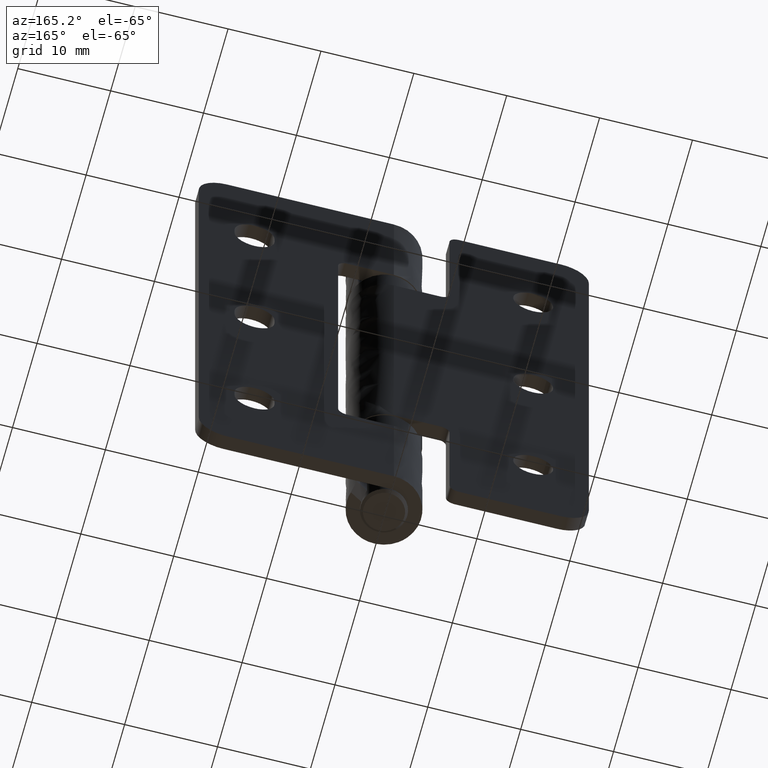
[diagram: clean part render]
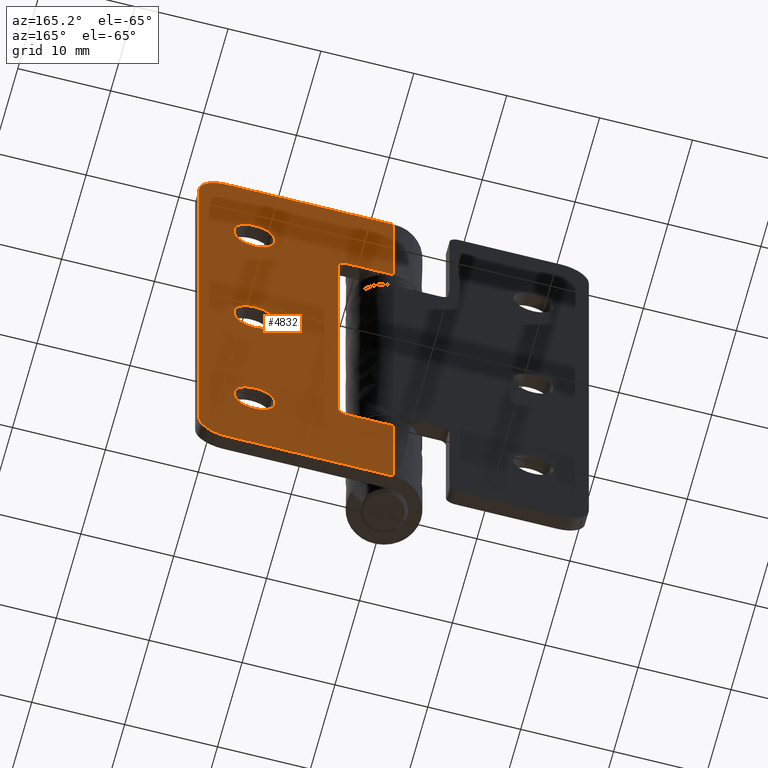
[diagram: same view with one face highlighted and labeled with its STEP entity id]
A machine part, auxiliary view. The second image highlights one B-rep face of the part: STEP entity #4832.
In plain terms, the highlighted face is a freeform B-spline surface patch.
Its self-contained STEP definition (entity closure, byte-faithful):
#3133=CARTESIAN_POINT('',(21.000000000000249,4.000000000000740,59.0));
#3134=VERTEX_POINT('',#3133);
#3135=CARTESIAN_POINT('',(21.000000000000249,4.000000000000740,3.0));
#3136=VERTEX_POINT('',#3135);
#3137=CARTESIAN_POINT('',(21.000000000000249,4.000000000000740,59.0));
#3138=CARTESIAN_POINT('',(21.000000000000249,4.000000000000740,3.0));
#3139=QUASI_UNIFORM_CURVE('',1,(#3137,#3138),.UNSPECIFIED.,.F.,.U.);
#3140=EDGE_CURVE('',#3134,#3136,#3139,.T.);
#3354=CARTESIAN_POINT('',(18.0,4.000000000000686,0.0));
#3355=VERTEX_POINT('',#3354);
#3361=CARTESIAN_POINT('',(21.000000000000249,4.000000000000740,3.0));
#3362=CARTESIAN_POINT('',(21.000116061152159,4.000000000000738,2.717730356393004));
#3363=CARTESIAN_POINT('',(20.940653351402851,4.000000000000727,2.300563675957953));
#3364=CARTESIAN_POINT('',(20.721483636953732,4.000000000000727,1.699675428696381));
#3365=CARTESIAN_POINT('',(20.416888918016891,4.000000000000698,1.176954198255986));
#3366=CARTESIAN_POINT('',(19.922393542313220,4.000000000000709,0.657542941131816));
#3367=CARTESIAN_POINT('',(19.368725826044770,4.000000000000690,0.306999293732984));
#3368=CARTESIAN_POINT('',(18.723982889428299,4.000000000000680,0.062833961659762));
#3369=CARTESIAN_POINT('',(18.282266173914739,4.000000000000697,-0.000112324100340));
#3370=CARTESIAN_POINT('',(18.0,4.000000000000686,0.0));
#3371=B_SPLINE_CURVE_WITH_KNOTS('',3,(#3361,#3362,#3363,#3364,#3365,#3366,#3367,#3368,#3369,#3370),.UNSPECIFIED.,.F.,.U.,(4,1,1,1,1,1,1,4),(0.000000086809734,0.846761320223142,1.251737829936889,1.914438360017636,2.650731675564213,3.387049641574537,3.865658404753547,4.712418548631745),.UNSPECIFIED.);
#3372=EDGE_CURVE('',#3136,#3355,#3371,.T.);
#3409=CARTESIAN_POINT('',(18.0,4.000000000000686,62.0));
#3410=VERTEX_POINT('',#3409);
#3411=CARTESIAN_POINT('',(18.0,4.000000000000686,62.0));
#3412=CARTESIAN_POINT('',(18.220896377921839,4.000000000000692,62.000042843371297));
#3413=CARTESIAN_POINT('',(18.638121905092120,4.000000000000677,61.953702447714747));
#3414=CARTESIAN_POINT('',(19.188436681635441,4.000000000000656,61.771910636832317));
#3415=CARTESIAN_POINT('',(19.675413172743280,4.000000000000706,61.507755905452953));
#3416=CARTESIAN_POINT('',(20.060499517313058,4.000000000000680,61.199551426162209));
#3417=CARTESIAN_POINT('',(20.421472791001129,4.000000000000696,60.796329496329150));
#3418=CARTESIAN_POINT('',(20.696035150265271,4.000000000000701,60.356829837216203));
#3419=CARTESIAN_POINT('',(20.935411836811952,4.000000000000709,59.736251929527128));
#3420=CARTESIAN_POINT('',(21.000116234458940,4.000000000000744,59.282267560980813));
#3421=CARTESIAN_POINT('',(21.000000000000249,4.000000000000740,59.0));
#3422=B_SPLINE_CURVE_WITH_KNOTS('',3,(#3411,#3412,#3413,#3414,#3415,#3416,#3417,#3418,#3419,#3420,#3421),.UNSPECIFIED.,.F.,.U.,(4,1,1,1,1,1,1,1,4),(0.000000086808813,0.662682928036981,1.251737829935594,1.730355480710800,2.319419796702396,2.724354663876945,3.350230237434267,3.865658404753584,4.712418548631763),.UNSPECIFIED.);
#3423=EDGE_CURVE('',#3410,#3134,#3422,.T.);
#3462=CARTESIAN_POINT('',(5.000000000000230,4.0,49.600000000000001));
#3463=VERTEX_POINT('',#3462);
#3469=CARTESIAN_POINT('',(6.000000000000230,4.0,48.599999999999987));
#3470=VERTEX_POINT('',#3469);
#3471=CARTESIAN_POINT('',(6.000000000000230,4.0,48.599999999999987));
#3472=CARTESIAN_POINT('',(6.000036704404684,4.000000000000078,48.698174138628367));
#3473=CARTESIAN_POINT('',(5.969654519745923,4.000000000000200,48.902696791073993));
#3474=CARTESIAN_POINT('',(5.842489861447035,4.000000000000318,49.163312331117972));
#3475=CARTESIAN_POINT('',(5.654231170386340,4.000000000000331,49.370954208934741));
#3476=CARTESIAN_POINT('',(5.384351379205684,4.000000000000268,49.546595364634662));
#3477=CARTESIAN_POINT('',(5.147309356629225,4.000000000000108,49.600231823773491));
#3478=CARTESIAN_POINT('',(5.000000000000230,4.0,49.600000000000001));
#3479=B_SPLINE_CURVE_WITH_KNOTS('',3,(#3471,#3472,#3473,#3474,#3475,#3476,#3477,#3478),.UNSPECIFIED.,.F.,.U.,(4,1,1,1,1,4),(0.000000143570550,0.294524780363219,0.613614123995934,0.859036535379638,1.129037297361218,1.570835744349380),.UNSPECIFIED.);
#3480=EDGE_CURVE('',#3470,#3463,#3479,.T.);
#3519=CARTESIAN_POINT('',(6.0,4.0,13.400000000000000));
#3520=VERTEX_POINT('',#3519);
#3526=CARTESIAN_POINT('',(5.0,4.0,12.400000000000000));
#3527=VERTEX_POINT('',#3526);
#3528=CARTESIAN_POINT('',(5.0,4.0,12.400000000000000));
#3529=CARTESIAN_POINT('',(5.130921715721939,4.000000000000099,12.399855654794189));
#3530=CARTESIAN_POINT('',(5.359883059818052,4.000000000000249,12.445657403351200));
#3531=CARTESIAN_POINT('',(5.650741817783278,4.000000000000331,12.619964664007600));
#3532=CARTESIAN_POINT('',(5.826363306898436,4.000000000000302,12.818601124711151));
#3533=CARTESIAN_POINT('',(5.962483607327085,4.000000000000224,13.081029832938530));
#3534=CARTESIAN_POINT('',(6.000159353584801,4.000000000000101,13.269066917916611));
#3535=CARTESIAN_POINT('',(6.0,4.0,13.400000000000000));
#3536=B_SPLINE_CURVE_WITH_KNOTS('',3,(#3528,#3529,#3530,#3531,#3532,#3533,#3534,#3535),.UNSPECIFIED.,.F.,.U.,(4,1,1,1,1,4),(0.000000143572439,0.392709295094437,0.687246075968066,1.006303823860220,1.178126844875340,1.570835744349413),.UNSPECIFIED.);
#3537=EDGE_CURVE('',#3527,#3520,#3536,.T.);
#3554=CARTESIAN_POINT('',(1.136244E-013,4.0,12.400000000000000));
#3555=VERTEX_POINT('',#3554);
#3637=CARTESIAN_POINT('',(5.0,4.0,12.400000000000000));
#3638=CARTESIAN_POINT('',(1.136244E-013,4.0,12.400000000000000));
#3639=QUASI_UNIFORM_CURVE('',1,(#3637,#3638),.UNSPECIFIED.,.F.,.U.);
#3640=EDGE_CURVE('',#3527,#3555,#3639,.T.);
#3650=CARTESIAN_POINT('',(6.000000000000230,4.0,48.599999999999987));
#3651=CARTESIAN_POINT('',(6.0,4.0,13.400000000000000));
#3652=QUASI_UNIFORM_CURVE('',1,(#3650,#3651),.UNSPECIFIED.,.F.,.U.);
#3653=EDGE_CURVE('',#3470,#3520,#3652,.T.);
#3729=CARTESIAN_POINT('',(1.136244E-013,4.0,49.600000000000001));
#3730=VERTEX_POINT('',#3729);
#3750=CARTESIAN_POINT('',(1.136244E-013,4.0,49.600000000000001));
#3751=CARTESIAN_POINT('',(5.000000000000230,4.0,49.600000000000001));
#3752=QUASI_UNIFORM_CURVE('',1,(#3750,#3751),.UNSPECIFIED.,.F.,.U.);
#3753=EDGE_CURVE('',#3730,#3463,#3752,.T.);
#3782=CARTESIAN_POINT('',(15.000001231762980,4.000000000000740,48.500000000000348));
#3783=VERTEX_POINT('',#3782);
#3784=CARTESIAN_POINT('',(17.150000000000251,4.000000000000711,50.649999999999999));
#3785=VERTEX_POINT('',#3784);
#3786=CARTESIAN_POINT('',(15.000001231762980,4.000000000000740,48.500000000000348));
#3787=CARTESIAN_POINT('',(15.123123398101940,4.000000000000740,48.499995338316211));
#3788=CARTESIAN_POINT('',(15.413355870640981,4.000000000000739,48.524971760347647));
#3789=CARTESIAN_POINT('',(15.837816047562811,4.000000000000736,48.650877207810112));
#3790=CARTESIAN_POINT('',(16.270175207249540,4.000000000000713,48.892318181143011));
#3791=CARTESIAN_POINT('',(16.624730259888079,4.000000000000781,49.213651733508200));
#3792=CARTESIAN_POINT('',(16.882101513532209,4.000000000000636,49.583976634740537));
#3793=CARTESIAN_POINT('',(17.089644816811759,4.000000000000782,50.052034200104160));
#3794=CARTESIAN_POINT('',(17.150133292508681,4.000000000000664,50.412519568638118));
#3795=CARTESIAN_POINT('',(17.150000000000251,4.000000000000711,50.649999999999999));
#3796=B_SPLINE_CURVE_WITH_KNOTS('',3,(#3786,#3787,#3788,#3789,#3790,#3791,#3792,#3793,#3794,#3795),.UNSPECIFIED.,.F.,.U.,(4,1,1,1,1,1,1,4),(0.000000091488576,0.369370677668934,0.870692919550236,1.319245758861563,1.846911803123659,2.295459832716966,2.664848629769046,3.377232598943152),.UNSPECIFIED.);
#3797=EDGE_CURVE('',#3783,#3785,#3796,.T.);
#3799=CARTESIAN_POINT('',(12.850000000000220,4.000000000000740,50.649999999999999));
#3800=VERTEX_POINT('',#3799);
#3801=CARTESIAN_POINT('',(12.850000000000220,4.000000000000740,50.649999999999999));
#3802=CARTESIAN_POINT('',(12.849931692171150,4.000000000000745,50.447714341630217));
#3803=CARTESIAN_POINT('',(12.907501265406641,4.000000000000745,50.043179596781499));
#3804=CARTESIAN_POINT('',(13.144681079884760,4.000000000000746,49.516787034306482));
#3805=CARTESIAN_POINT('',(13.501535194979841,4.000000000000752,49.076521248531783));
#3806=CARTESIAN_POINT('',(13.893593774472350,4.000000000000751,48.785742463081647));
#3807=CARTESIAN_POINT('',(14.402051304026260,4.000000000000716,48.560382857353112));
#3808=CARTESIAN_POINT('',(14.762515541558949,4.000000000000782,48.499857656235250));
#3809=CARTESIAN_POINT('',(15.000001231762980,4.000000000000740,48.500000000000348));
#3810=B_SPLINE_CURVE_WITH_KNOTS('',3,(#3801,#3802,#3803,#3804,#3805,#3806,#3807,#3808,#3809),.UNSPECIFIED.,.F.,.U.,(4,1,1,1,1,1,4),(0.000000091078706,0.606843827736562,1.213705708926797,1.714973741513350,2.295460775695380,2.664849724919718,3.377233987435436),.UNSPECIFIED.);
#3811=EDGE_CURVE('',#3800,#3783,#3810,.T.);
#3862=CARTESIAN_POINT('',(17.150000000000251,4.000000000000740,51.350000000000001));
#3863=VERTEX_POINT('',#3862);
#3864=CARTESIAN_POINT('',(17.150000000000251,4.000000000000740,51.350000000000001));
#3865=CARTESIAN_POINT('',(17.150000000000251,4.000000000000711,50.649999999999999));
#3866=QUASI_UNIFORM_CURVE('',1,(#3864,#3865),.UNSPECIFIED.,.F.,.U.);
#3867=EDGE_CURVE('',#3863,#3785,#3866,.T.);
#3903=CARTESIAN_POINT('',(14.999998768237511,4.000000000000740,53.499999999999652));
#3904=VERTEX_POINT('',#3903);
#3905=CARTESIAN_POINT('',(12.850000000000220,4.000000000000740,51.350000000000001));
#3906=VERTEX_POINT('',#3905);
#3907=CARTESIAN_POINT('',(14.999998768237511,4.000000000000740,53.499999999999652));
#3908=CARTESIAN_POINT('',(14.841693854924250,4.000000000000727,53.500028034506862));
#3909=CARTESIAN_POINT('',(14.533890051926591,4.000000000000759,53.465843853951618));
#3910=CARTESIAN_POINT('',(14.064618759109040,4.000000000000716,53.307679132625587));
#3911=CARTESIAN_POINT('',(13.658489091065629,4.000000000000783,53.053954874238393));
#3912=CARTESIAN_POINT('',(13.296052008652900,4.000000000000691,52.691501946567072));
#3913=CARTESIAN_POINT('',(13.042315050902459,4.000000000000819,52.285383994251760));
#3914=CARTESIAN_POINT('',(12.884160773407830,4.000000000000593,51.816107641651662));
#3915=CARTESIAN_POINT('',(12.849968892110279,4.000000000000834,51.508305317198413));
#3916=CARTESIAN_POINT('',(12.850000000000220,4.000000000000740,51.350000000000001));
#3917=B_SPLINE_CURVE_WITH_KNOTS('',3,(#3907,#3908,#3909,#3910,#3911,#3912,#3913,#3914,#3915,#3916),.UNSPECIFIED.,.F.,.U.,(4,1,1,1,1,1,1,4),(0.000000091500271,0.474911226459569,0.923462519107473,1.477553205100172,1.899679483980743,2.453770171554965,2.902321463584730,3.377232598943114),.UNSPECIFIED.);
#3918=EDGE_CURVE('',#3904,#3906,#3917,.T.);
#3920=CARTESIAN_POINT('',(17.150000000000251,4.000000000000740,51.350000000000001));
#3921=CARTESIAN_POINT('',(17.150133742458021,4.000000000000755,51.587478729915787));
#3922=CARTESIAN_POINT('',(17.086701271370082,4.000000000000706,51.965559185659849));
#3923=CARTESIAN_POINT('',(16.880538112546709,4.000000000000783,52.415482070729830));
#3924=CARTESIAN_POINT('',(16.643867083344301,4.000000000000707,52.755980343974407));
#3925=CARTESIAN_POINT('',(16.365213997726489,4.000000000000759,53.027877618658792));
#3926=CARTESIAN_POINT('',(16.019010667380030,4.000000000000727,53.256129565964947));
#3927=CARTESIAN_POINT('',(15.580400208012611,4.000000000000738,53.444181168923912));
#3928=CARTESIAN_POINT('',(15.219883458531561,4.000000000000741,53.500112007139400));
#3929=CARTESIAN_POINT('',(14.999998768237511,4.000000000000740,53.499999999999652));
#3930=B_SPLINE_CURVE_WITH_KNOTS('',3,(#3920,#3921,#3922,#3923,#3924,#3925,#3926,#3927,#3928,#3929),.UNSPECIFIED.,.F.,.U.,(4,1,1,1,1,1,1,4),(0.000000091093618,0.712384353347059,1.134543955030726,1.477553813125613,1.952448818788472,2.295460775696690,2.717619858914358,3.377233987435407),.UNSPECIFIED.);
#3931=EDGE_CURVE('',#3863,#3904,#3930,.T.);
#3976=CARTESIAN_POINT('',(12.850000000000220,4.000000000000740,50.649999999999999));
#3977=CARTESIAN_POINT('',(12.850000000000220,4.000000000000740,51.350000000000001));
#3978=QUASI_UNIFORM_CURVE('',1,(#3976,#3977),.UNSPECIFIED.,.F.,.U.);
#3979=EDGE_CURVE('',#3800,#3906,#3978,.T.);
#4009=CARTESIAN_POINT('',(15.000001231762770,4.000000000000740,28.500000000000352));
#4010=VERTEX_POINT('',#4009);
#4011=CARTESIAN_POINT('',(17.149999999999999,4.000000000000711,30.649999999999999));
#4012=VERTEX_POINT('',#4011);
#4013=CARTESIAN_POINT('',(15.000001231762770,4.000000000000740,28.500000000000352));
#4014=CARTESIAN_POINT('',(15.255087832395830,4.000000000000738,28.499780978539949));
#4015=CARTESIAN_POINT('',(15.659485952084969,4.000000000000731,28.572892231521021));
#4016=CARTESIAN_POINT('',(16.174473425440102,4.000000000000727,28.828183202944150));
#4017=CARTESIAN_POINT('',(16.511529829783619,4.000000000000745,29.101373818490622));
#4018=CARTESIAN_POINT('',(16.799116656845332,4.000000000000695,29.447441637916960));
#4019=CARTESIAN_POINT('',(17.065190376945289,4.000000000000747,29.937780930392169));
#4020=CARTESIAN_POINT('',(17.150258792280550,4.000000000000690,30.377317610364091));
#4021=CARTESIAN_POINT('',(17.149999999999999,4.000000000000711,30.649999999999999));
#4022=B_SPLINE_CURVE_WITH_KNOTS('',3,(#4013,#4014,#4015,#4016,#4017,#4018,#4019,#4020,#4021),.UNSPECIFIED.,.F.,.U.,(4,1,1,1,1,1,4),(0.000000091503228,0.765153917732655,1.213705210222492,1.714973036031447,2.057986930773442,2.559309173339433,3.377232598943102),.UNSPECIFIED.);
#4023=EDGE_CURVE('',#4010,#4012,#4022,.T.);
#4025=CARTESIAN_POINT('',(12.850000000000120,4.000000000000740,30.649999999999999));
#4026=VERTEX_POINT('',#4025);
#4027=CARTESIAN_POINT('',(12.850000000000120,4.000000000000740,30.649999999999999));
#4028=CARTESIAN_POINT('',(12.849854788300849,4.000000000000743,30.412520814837109));
#4029=CARTESIAN_POINT('',(12.923600778366030,4.000000000000748,29.972869796757990));
#4030=CARTESIAN_POINT('',(13.178297039632630,4.000000000000746,29.474573699731909));
#4031=CARTESIAN_POINT('',(13.505365162415989,4.000000000000754,29.080984744362791));
#4032=CARTESIAN_POINT('',(13.862191955744411,4.000000000000730,28.802538895128212));
#4033=CARTESIAN_POINT('',(14.384457280812100,4.000000000000766,28.563322928519032));
#4034=CARTESIAN_POINT('',(14.762517731093970,4.000000000000659,28.499858199451751));
#4035=CARTESIAN_POINT('',(15.000001231762770,4.000000000000740,28.500000000000352));
#4036=B_SPLINE_CURVE_WITH_KNOTS('',3,(#4027,#4028,#4029,#4030,#4031,#4032,#4033,#4034,#4035),.UNSPECIFIED.,.F.,.U.,(4,1,1,1,1,1,4),(0.000000091072208,0.712384353331416,1.319246301169749,1.662260337062303,2.242690122888278,2.664849724916231,3.377233987435478),.UNSPECIFIED.);
#4037=EDGE_CURVE('',#4026,#4010,#4036,.T.);
#4089=CARTESIAN_POINT('',(17.149999999999999,4.000000000000740,31.350000000000001));
#4090=VERTEX_POINT('',#4089);
#4091=CARTESIAN_POINT('',(17.149999999999999,4.000000000000740,31.350000000000001));
#4092=CARTESIAN_POINT('',(17.149999999999999,4.000000000000711,30.649999999999999));
#4093=QUASI_UNIFORM_CURVE('',1,(#4091,#4092),.UNSPECIFIED.,.F.,.U.);
#4094=EDGE_CURVE('',#4090,#4012,#4093,.T.);
#4130=CARTESIAN_POINT('',(14.999998768237260,4.000000000000740,33.499999999999652));
#4131=VERTEX_POINT('',#4130);
#4132=CARTESIAN_POINT('',(12.850000000000120,4.000000000000740,31.350000000000001));
#4133=VERTEX_POINT('',#4132);
#4134=CARTESIAN_POINT('',(14.999998768237260,4.000000000000740,33.499999999999652));
#4135=CARTESIAN_POINT('',(14.824101859757430,4.000000000000741,33.500041200273500));
#4136=CARTESIAN_POINT('',(14.463535978935020,4.000000000000736,33.455511895122797));
#4137=CARTESIAN_POINT('',(13.951746715337100,4.000000000000736,33.254544831739523));
#4138=CARTESIAN_POINT('',(13.536774816276379,4.000000000000746,32.950649488557062));
#4139=CARTESIAN_POINT('',(13.259731234620300,4.000000000000705,32.629424573394338));
#4140=CARTESIAN_POINT('',(13.062874743186510,4.000000000000775,32.305511585647480));
#4141=CARTESIAN_POINT('',(12.898777072991530,4.000000000000715,31.895244597455751));
#4142=CARTESIAN_POINT('',(12.849920303010000,4.000000000000744,31.552287670341059));
#4143=CARTESIAN_POINT('',(12.850000000000120,4.000000000000740,31.350000000000001));
#4144=B_SPLINE_CURVE_WITH_KNOTS('',3,(#4134,#4135,#4136,#4137,#4138,#4139,#4140,#4141,#4142,#4143),.UNSPECIFIED.,.F.,.U.,(4,1,1,1,1,1,1,4),(0.000000091511631,0.527681888622879,1.081772858247766,1.635852755332466,2.057986930776215,2.348230202528065,2.770389111998449,3.377232598942997),.UNSPECIFIED.);
#4145=EDGE_CURVE('',#4131,#4133,#4144,.T.);
#4147=CARTESIAN_POINT('',(17.149999999999999,4.000000000000740,31.350000000000001));
#4148=CARTESIAN_POINT('',(17.150079702576178,4.000000000000731,31.552287879404261));
#4149=CARTESIAN_POINT('',(17.101206005162052,4.000000000000744,31.895232269271489));
#4150=CARTESIAN_POINT('',(16.887997003588460,4.000000000000744,32.428650375623022));
#4151=CARTESIAN_POINT('',(16.596195360781330,4.000000000000727,32.822106284629562));
#4152=CARTESIAN_POINT('',(16.202546812319198,4.000000000000748,33.149110073977347));
#4153=CARTESIAN_POINT('',(15.712213239024379,4.000000000000711,33.415170498261567));
#4154=CARTESIAN_POINT('',(15.272685234883649,4.000000000000765,33.500280686468763));
#4155=CARTESIAN_POINT('',(14.999998768237260,4.000000000000740,33.499999999999652));
#4156=B_SPLINE_CURVE_WITH_KNOTS('',3,(#4147,#4148,#4149,#4150,#4151,#4152,#4153,#4154,#4155),.UNSPECIFIED.,.F.,.U.,(4,1,1,1,1,1,4),(0.000000091064327,0.606843827723198,1.029002910788386,1.714973741504522,2.057987778137153,2.559310225285730,3.377233987435541),.UNSPECIFIED.);
#4157=EDGE_CURVE('',#4090,#4131,#4156,.T.);
#4202=CARTESIAN_POINT('',(12.850000000000120,4.000000000000740,30.649999999999999));
#4203=CARTESIAN_POINT('',(12.850000000000120,4.000000000000740,31.350000000000001));
#4204=QUASI_UNIFORM_CURVE('',1,(#4202,#4203),.UNSPECIFIED.,.F.,.U.);
#4205=EDGE_CURVE('',#4026,#4133,#4204,.T.);
#4235=CARTESIAN_POINT('',(15.000001231762759,4.000000000000740,8.500000000000215));
#4236=VERTEX_POINT('',#4235);
#4237=CARTESIAN_POINT('',(17.149999999999999,4.000000000000711,10.649999999999860));
#4238=VERTEX_POINT('',#4237);
#4239=CARTESIAN_POINT('',(15.000001231762759,4.000000000000740,8.500000000000215));
#4240=CARTESIAN_POINT('',(15.158306812088060,4.000000000000750,8.499969035558660));
#4241=CARTESIAN_POINT('',(15.466111417378540,4.000000000000733,8.534154804109193));
#4242=CARTESIAN_POINT('',(15.885077453716759,4.000000000000709,8.675411531924816));
#4243=CARTESIAN_POINT('',(16.313975727863578,4.000000000000738,8.921785040507885));
#4244=CARTESIAN_POINT('',(16.674532976300831,4.000000000000709,9.265077488521417));
#4245=CARTESIAN_POINT('',(16.932150815499639,4.000000000000783,9.677613244315641));
#4246=CARTESIAN_POINT('',(17.103715938226859,4.000000000000661,10.122353040735730));
#4247=CARTESIAN_POINT('',(17.150079121854201,4.000000000000743,10.447709367688651));
#4248=CARTESIAN_POINT('',(17.149999999999999,4.000000000000711,10.649999999999860));
#4249=B_SPLINE_CURVE_WITH_KNOTS('',3,(#4239,#4240,#4241,#4242,#4243,#4244,#4245,#4246,#4247,#4248),.UNSPECIFIED.,.F.,.U.,(4,1,1,1,1,1,1,4),(0.000000091493829,0.474911226453584,0.923462519102251,1.319245758864903,1.952448014484317,2.401000314792888,2.770389111995949,3.377232598943101),.UNSPECIFIED.);
#4250=EDGE_CURVE('',#4236,#4238,#4249,.T.);
#4252=CARTESIAN_POINT('',(12.850000000000120,4.000000000000740,10.649999999999860));
#4253=VERTEX_POINT('',#4252);
#4254=CARTESIAN_POINT('',(12.850000000000120,4.000000000000740,10.649999999999860));
#4255=CARTESIAN_POINT('',(12.849922608847180,4.000000000000735,10.447708318090660));
#4256=CARTESIAN_POINT('',(12.891273243560160,4.000000000000750,10.157530371804270));
#4257=CARTESIAN_POINT('',(13.039708294890710,4.000000000000739,9.742702737597893));
#4258=CARTESIAN_POINT('',(13.220770132002910,4.000000000000744,9.418444897690074));
#4259=CARTESIAN_POINT('',(13.478529694316920,4.000000000000759,9.115921246269009));
#4260=CARTESIAN_POINT('',(13.797444969898280,4.000000000000702,8.850889132933828));
#4261=CARTESIAN_POINT('',(14.287776806193980,4.000000000000783,8.584800824413550));
#4262=CARTESIAN_POINT('',(14.727321249463930,4.000000000000712,8.499745998076897));
#4263=CARTESIAN_POINT('',(15.000001231762759,4.000000000000740,8.500000000000215));
#4264=B_SPLINE_CURVE_WITH_KNOTS('',3,(#4254,#4255,#4256,#4257,#4258,#4259,#4260,#4261,#4262,#4263),.UNSPECIFIED.,.F.,.U.,(4,1,1,1,1,1,1,4),(0.000000091070543,0.606843827727774,0.870693277163098,1.319246301169281,1.714973741506469,2.057987778138653,2.559310225286552,3.377233987435441),.UNSPECIFIED.);
#4265=EDGE_CURVE('',#4253,#4236,#4264,.T.);
#4317=CARTESIAN_POINT('',(17.149999999999999,4.000000000000740,11.350000000000140));
#4318=VERTEX_POINT('',#4317);
#4319=CARTESIAN_POINT('',(17.149999999999999,4.000000000000740,11.350000000000140));
#4320=CARTESIAN_POINT('',(17.149999999999999,4.000000000000711,10.649999999999860));
#4321=QUASI_UNIFORM_CURVE('',1,(#4319,#4320),.UNSPECIFIED.,.F.,.U.);
#4322=EDGE_CURVE('',#4318,#4238,#4321,.T.);
#4358=CARTESIAN_POINT('',(14.999998768237210,4.000000000000740,13.499999999999650));
#4359=VERTEX_POINT('',#4358);
#4360=CARTESIAN_POINT('',(12.850000000000120,4.000000000000740,11.350000000000000));
#4361=VERTEX_POINT('',#4360);
#4362=CARTESIAN_POINT('',(14.999998768237210,4.000000000000740,13.499999999999650));
#4363=CARTESIAN_POINT('',(14.841696126633551,4.000000000000743,13.500022818326929));
#4364=CARTESIAN_POINT('',(14.498696627451350,4.000000000000743,13.461970941621230));
#4365=CARTESIAN_POINT('',(14.048814215877590,4.000000000000735,13.297901954484599));
#4366=CARTESIAN_POINT('',(13.647467576847950,4.000000000000747,13.040226989597560));
#4367=CARTESIAN_POINT('',(13.280044858375151,4.000000000000734,12.681873140977210));
#4368=CARTESIAN_POINT('',(13.026503462930560,4.000000000000747,12.252892748938320));
#4369=CARTESIAN_POINT('',(12.880265144895210,4.000000000000774,11.780925536130530));
#4370=CARTESIAN_POINT('',(12.849968934336360,4.000000000000691,11.508305385640110));
#4371=CARTESIAN_POINT('',(12.850000000000120,4.000000000000740,11.350000000000000));
#4372=B_SPLINE_CURVE_WITH_KNOTS('',3,(#4362,#4363,#4364,#4365,#4366,#4367,#4368,#4369,#4370,#4371),.UNSPECIFIED.,.F.,.U.,(4,1,1,1,1,1,1,4),(0.000000091501975,0.474911226460663,1.029002488344182,1.424784674813103,1.899679483980366,2.559309173339802,2.902321463584051,3.377232598943010),.UNSPECIFIED.);
#4373=EDGE_CURVE('',#4359,#4361,#4372,.T.);
#4375=CARTESIAN_POINT('',(17.149999999999999,4.000000000000740,11.350000000000140));
#4376=CARTESIAN_POINT('',(17.150069630613949,4.000000000000736,11.552285087787981));
#4377=CARTESIAN_POINT('',(17.098724291665491,4.000000000000748,11.912831739372040));
#4378=CARTESIAN_POINT('',(16.878666449517421,4.000000000000744,12.444240386482591));
#4379=CARTESIAN_POINT('',(16.561061599674058,4.000000000000719,12.861673396023980));
#4380=CARTESIAN_POINT('',(16.158627331335840,4.000000000000759,13.179648358939430));
#4381=CARTESIAN_POINT('',(15.659484742257570,4.000000000000702,13.427111090248710));
#4382=CARTESIAN_POINT('',(15.255085432074040,4.000000000000796,13.500217400752870));
#4383=CARTESIAN_POINT('',(14.999998768237210,4.000000000000740,13.499999999999650));
#4384=B_SPLINE_CURVE_WITH_KNOTS('',3,(#4375,#4376,#4377,#4378,#4379,#4380,#4381,#4382,#4383),.UNSPECIFIED.,.F.,.U.,(4,1,1,1,1,1,4),(0.000000091074060,0.606843827731165,1.081773302299335,1.714973741507923,2.163528370155413,2.612079846438424,3.377233987435454),.UNSPECIFIED.);
#4385=EDGE_CURVE('',#4318,#4359,#4384,.T.);
#4430=CARTESIAN_POINT('',(12.850000000000120,4.000000000000740,10.649999999999860));
#4431=CARTESIAN_POINT('',(12.850000000000120,4.000000000000740,11.350000000000000));
#4432=QUASI_UNIFORM_CURVE('',1,(#4430,#4431),.UNSPECIFIED.,.F.,.U.);
#4433=EDGE_CURVE('',#4253,#4361,#4432,.T.);
#4508=CARTESIAN_POINT('',(4.936607E-013,4.000000000000370,0.0));
#4509=VERTEX_POINT('',#4508);
#4529=CARTESIAN_POINT('',(18.0,4.000000000000686,0.0));
#4530=CARTESIAN_POINT('',(4.936607E-013,4.000000000000370,0.0));
#4531=QUASI_UNIFORM_CURVE('',1,(#4529,#4530),.UNSPECIFIED.,.F.,.U.);
#4532=EDGE_CURVE('',#3355,#4509,#4531,.T.);
#4548=CARTESIAN_POINT('',(4.936607E-013,4.000000000000370,62.0));
#4549=VERTEX_POINT('',#4548);
#4635=CARTESIAN_POINT('',(18.0,4.000000000000686,62.0));
#4636=CARTESIAN_POINT('',(4.936607E-013,4.000000000000370,62.0));
#4637=QUASI_UNIFORM_CURVE('',1,(#4635,#4636),.UNSPECIFIED.,.F.,.U.);
#4638=EDGE_CURVE('',#3410,#4549,#4637,.T.);
#4774=CARTESIAN_POINT('',(1.136244E-013,4.0,12.400000000000000));
#4775=CARTESIAN_POINT('',(4.936607E-013,4.000000000000370,0.0));
#4776=QUASI_UNIFORM_CURVE('',1,(#4774,#4775),.UNSPECIFIED.,.F.,.U.);
#4777=EDGE_CURVE('',#3555,#4509,#4776,.T.);
#4785=CARTESIAN_POINT('',(-1.048949959297818,4.000000000000740,-3.096899879831973));
#4786=CARTESIAN_POINT('',(22.048950522562080,4.000000000000740,-3.096899879831973));
#4787=CARTESIAN_POINT('',(-1.048949959297818,4.000000000000740,65.096901542801575));
#4788=CARTESIAN_POINT('',(22.048950522562080,4.000000000000740,65.096901542801575));
#4789=B_SPLINE_SURFACE_WITH_KNOTS('',1,1,((#4785,#4787),(#4786,#4788)),.UNSPECIFIED.,.F.,.F.,.U.,(2,2),(2,2),(0.0,23.097900481859899),(0.0,68.193801422633555),.UNSPECIFIED.);
#4790=ORIENTED_EDGE('',*,*,#4638,.F.);
#4791=ORIENTED_EDGE('',*,*,#3423,.T.);
#4792=ORIENTED_EDGE('',*,*,#3140,.T.);
#4793=ORIENTED_EDGE('',*,*,#3372,.T.);
#4794=ORIENTED_EDGE('',*,*,#4532,.T.);
#4795=ORIENTED_EDGE('',*,*,#4777,.F.);
#4796=ORIENTED_EDGE('',*,*,#3640,.F.);
#4797=ORIENTED_EDGE('',*,*,#3537,.T.);
#4798=ORIENTED_EDGE('',*,*,#3653,.F.);
#4799=ORIENTED_EDGE('',*,*,#3480,.T.);
#4800=ORIENTED_EDGE('',*,*,#3753,.F.);
#4801=CARTESIAN_POINT('',(4.936607E-013,4.000000000000370,62.0));
#4802=CARTESIAN_POINT('',(1.136244E-013,4.0,49.600000000000001));
#4803=QUASI_UNIFORM_CURVE('',1,(#4801,#4802),.UNSPECIFIED.,.F.,.U.);
#4804=EDGE_CURVE('',#4549,#3730,#4803,.T.);
#4805=ORIENTED_EDGE('',*,*,#4804,.F.);
#4806=EDGE_LOOP('',(#4790,#4791,#4792,#4793,#4794,#4795,#4796,#4797,#4798,#4799,#4800,#4805));
#4807=FACE_OUTER_BOUND('',#4806,.T.);
#4808=ORIENTED_EDGE('',*,*,#4205,.F.);
#4809=ORIENTED_EDGE('',*,*,#4037,.T.);
#4810=ORIENTED_EDGE('',*,*,#4023,.T.);
#4811=ORIENTED_EDGE('',*,*,#4094,.F.);
#4812=ORIENTED_EDGE('',*,*,#4157,.T.);
#4813=ORIENTED_EDGE('',*,*,#4145,.T.);
#4814=EDGE_LOOP('',(#4808,#4809,#4810,#4811,#4812,#4813));
#4815=FACE_BOUND('',#4814,.T.);
#4816=ORIENTED_EDGE('',*,*,#4433,.F.);
#4817=ORIENTED_EDGE('',*,*,#4265,.T.);
#4818=ORIENTED_EDGE('',*,*,#4250,.T.);
#4819=ORIENTED_EDGE('',*,*,#4322,.F.);
#4820=ORIENTED_EDGE('',*,*,#4385,.T.);
#4821=ORIENTED_EDGE('',*,*,#4373,.T.);
#4822=EDGE_LOOP('',(#4816,#4817,#4818,#4819,#4820,#4821));
#4823=FACE_BOUND('',#4822,.T.);
#4824=ORIENTED_EDGE('',*,*,#3979,.F.);
#4825=ORIENTED_EDGE('',*,*,#3811,.T.);
#4826=ORIENTED_EDGE('',*,*,#3797,.T.);
#4827=ORIENTED_EDGE('',*,*,#3867,.F.);
#4828=ORIENTED_EDGE('',*,*,#3931,.T.);
#4829=ORIENTED_EDGE('',*,*,#3918,.T.);
#4830=EDGE_LOOP('',(#4824,#4825,#4826,#4827,#4828,#4829));
#4831=FACE_BOUND('',#4830,.T.);
#4832=ADVANCED_FACE('',(#4807,#4815,#4823,#4831),#4789,.F.);